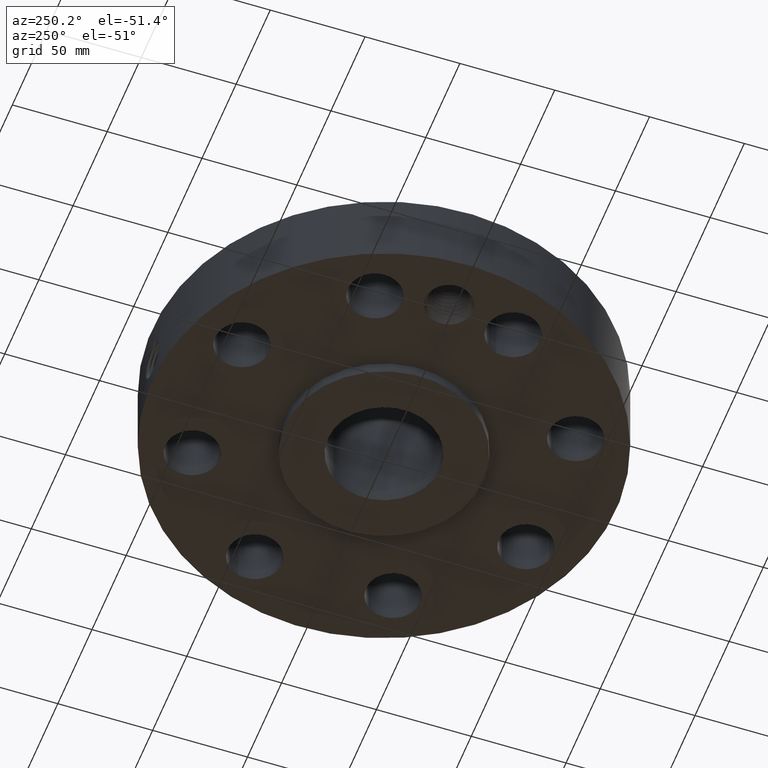
[diagram: clean part render]
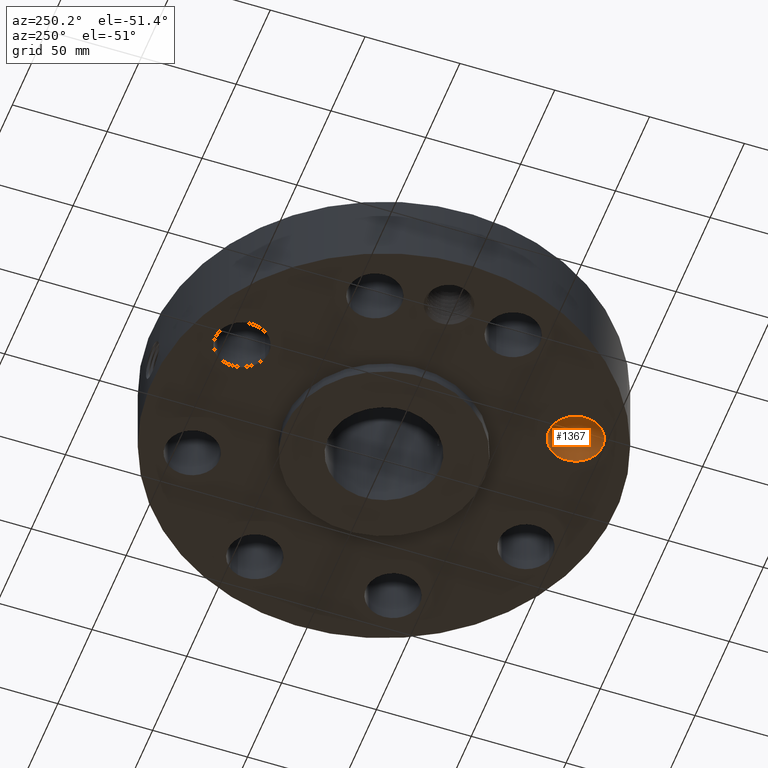
[diagram: same view with one face highlighted and labeled with its STEP entity id]
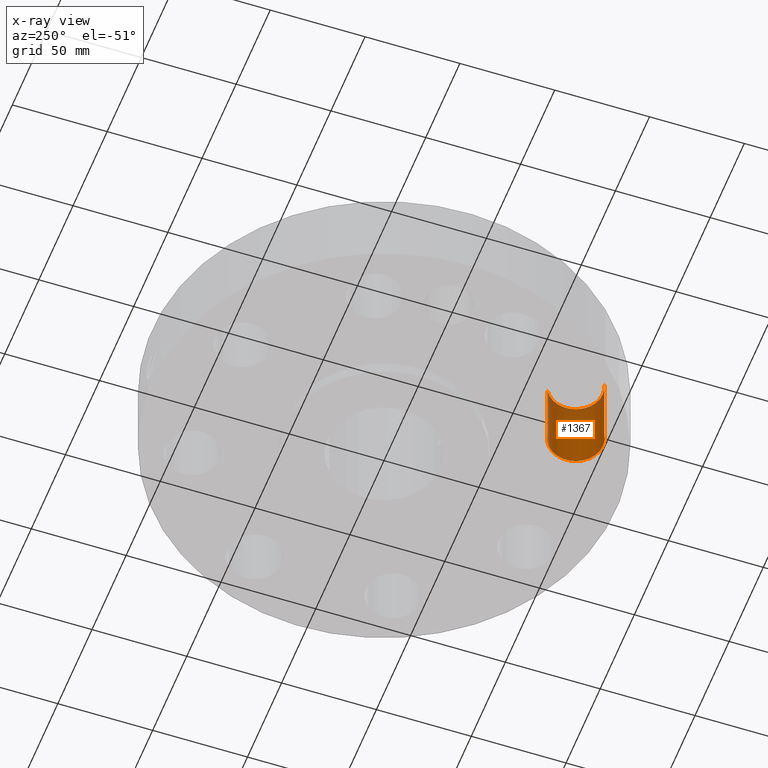
[diagram: x-ray of the same camera — body ghosted, the highlighted face saturated]
A machine part, auxiliary view. The second image highlights one B-rep face of the part: STEP entity #1367.
The next image is the same camera in x-ray: the body ghosted, the highlighted face saturated — about 21% of this face is hidden behind the body in this view.
In plain terms, the highlighted cylindrical surface (edge-blend (fillet) strip) has radius 14.224 mm, axis along (0, -0, -1).
Its self-contained STEP definition (entity closure, byte-faithful):
#295=AXIS2_PLACEMENT_3D('Circle Axis2P3D',#293,#294,$) ;
#638=AXIS2_PLACEMENT_3D('Circle Axis2P3D',#636,#637,$) ;
#1349=AXIS2_PLACEMENT_3D('Cylinder Axis2P3D',#1346,#1347,#1348) ;
#293=CARTESIAN_POINT('Axis2P3D Location',(-1.43506287137,-3.46454824693,0.250000000001)) ;
#297=CARTESIAN_POINT('Vertex',(-1.16658456976,-2.97310201227,0.250000000001)) ;
#299=CARTESIAN_POINT('Vertex',(-1.70354117299,-3.95599448159,0.250000000001)) ;
#631=CARTESIAN_POINT('Vertex',(-1.70354117299,-3.95599448159,1.87000000001)) ;
#633=CARTESIAN_POINT('Vertex',(-1.16658456976,-2.97310201227,1.87000000001)) ;
#636=CARTESIAN_POINT('Axis2P3D Location',(-1.43506287137,-3.46454824693,1.87000000001)) ;
#1346=CARTESIAN_POINT('Axis2P3D Location',(-1.43506287137,-3.46454824693,1.86606299213)) ;
#1351=CARTESIAN_POINT('Line Origine',(-1.16658456976,-2.97310201227,1.06)) ;
#1356=CARTESIAN_POINT('Line Origine',(-1.70354117299,-3.95599448159,1.06)) ;
#294=DIRECTION('Axis2P3D Direction',(0.,0.,-0.0393700787402)) ;
#637=DIRECTION('Axis2P3D Direction',(0.,0.,-0.0393700787402)) ;
#1347=DIRECTION('Axis2P3D Direction',(0.,-0.,-0.0393700787402)) ;
#1348=DIRECTION('Axis2P3D XDirection',(-0.0188750212049,-0.0345504945626,0.)) ;
#1352=DIRECTION('Vector Direction',(0.,0.,-0.0393700787402)) ;
#1357=DIRECTION('Vector Direction',(0.,0.,-0.0393700787402)) ;
#1353=VECTOR('Line Direction',#1352,0.0393700787402) ;
#1358=VECTOR('Line Direction',#1357,0.0393700787402) ;
#1362=ORIENTED_EDGE('',*,*,#1355,.F.) ;
#1363=ORIENTED_EDGE('',*,*,#301,.T.) ;
#1364=ORIENTED_EDGE('',*,*,#1360,.T.) ;
#1365=ORIENTED_EDGE('',*,*,#640,.F.) ;
#1367=ADVANCED_FACE('PartBody',(#1366),#1350,.F.) ;
#296=CIRCLE('generated circle',#295,0.560000000002) ;
#639=CIRCLE('generated circle',#638,0.560000000002) ;
#1350=CYLINDRICAL_SURFACE('generated cylinder',#1349,0.560000000002) ;
#301=EDGE_CURVE('',#298,#300,#296,.T.) ;
#640=EDGE_CURVE('',#634,#632,#639,.T.) ;
#1355=EDGE_CURVE('',#298,#634,#1354,.F.) ;
#1360=EDGE_CURVE('',#300,#632,#1359,.F.) ;
#1361=EDGE_LOOP('',(#1362,#1363,#1364,#1365)) ;
#1366=FACE_OUTER_BOUND('',#1361,.T.) ;
#1354=LINE('Line',#1351,#1353) ;
#1359=LINE('Line',#1356,#1358) ;
#298=VERTEX_POINT('',#297) ;
#300=VERTEX_POINT('',#299) ;
#632=VERTEX_POINT('',#631) ;
#634=VERTEX_POINT('',#633) ;